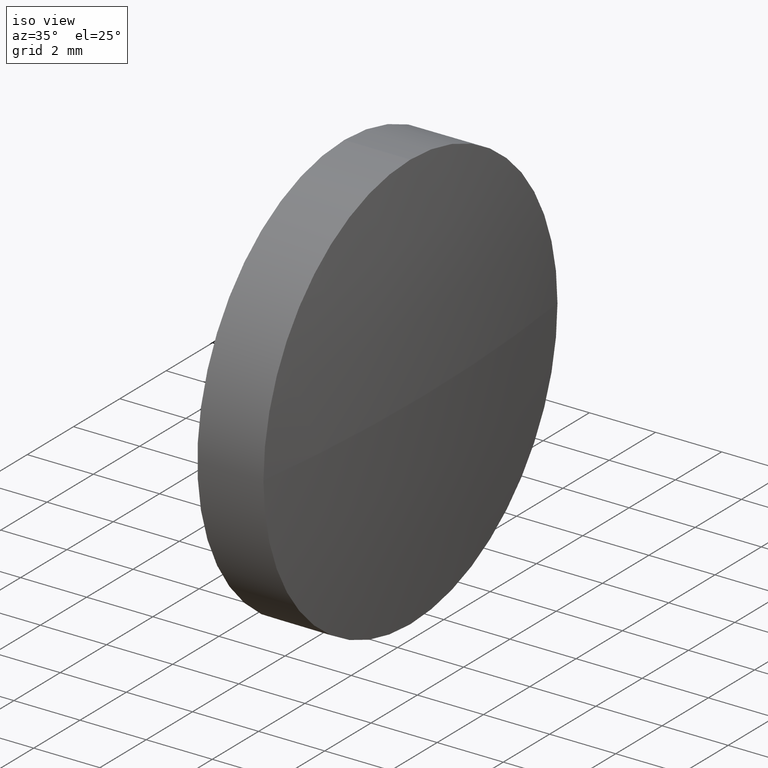
[diagram: clean part render]
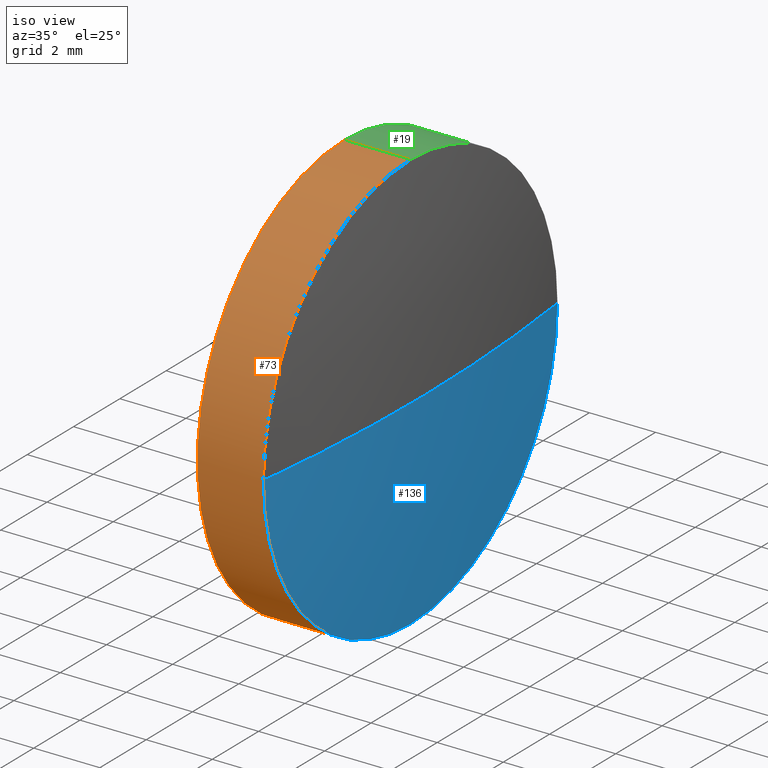
[diagram: same view with three faces highlighted in distinct colors, each labeled with its STEP entity id]
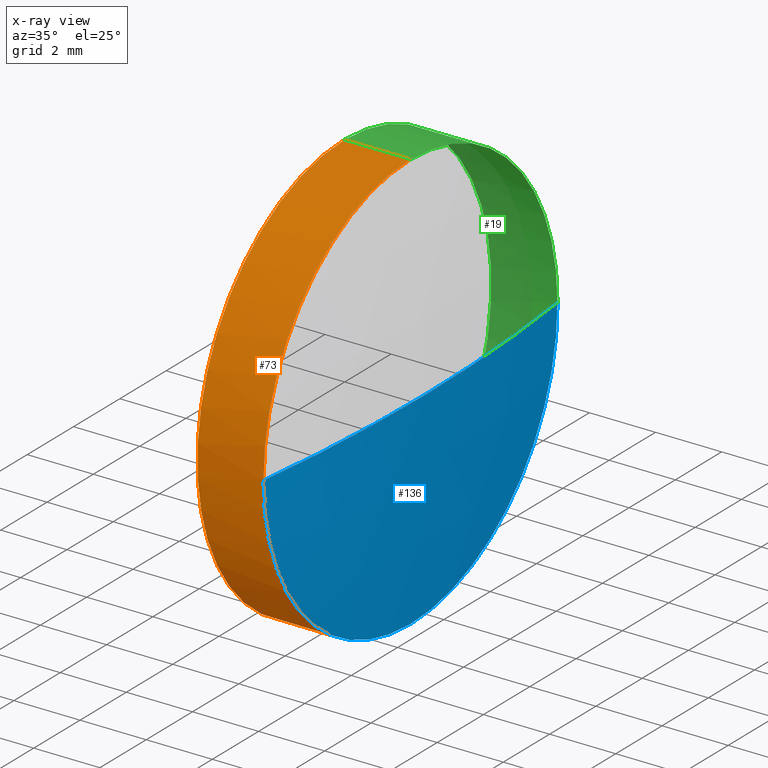
[diagram: x-ray of the same camera — body ghosted, the three highlighted faces saturated]
A machine part, iso view with three faces highlighted in distinct colors.
The next image is the same camera in x-ray (body ghosted, the three faces saturated) — at least one of them is partly hidden behind the body in this view.
Their STEP definitions:

[orange] entity #73 — the highlighted cylindrical surface (partial cylindrical patch) has radius 6.35 mm, axis along (-1, -0, -0).
#3 = EDGE_CURVE ( 'NONE', #176, #165, #163, .T. ) ;
#6 = DIRECTION ( 'NONE',  ( -1.000000000000000000, -0.0000000000000000000, -0.0000000000000000000 ) ) ;
#12 = CARTESIAN_POINT ( 'NONE',  ( 551.8125703644948300, 54.82747999081997400, 6.350000000000001400 ) ) ;
#13 = CIRCLE ( 'NONE', #121, 6.350000000000001400 ) ;
#14 = AXIS2_PLACEMENT_3D ( 'NONE', #182, #46, #99 ) ;
#16 = VERTEX_POINT ( 'NONE', #42 ) ;
#28 = LINE ( 'NONE', #139, #123 ) ;
#29 = CARTESIAN_POINT ( 'NONE',  ( 553.8125703644948300, 54.82747999081997400, 0.0000000000000000000 ) ) ;
#32 = CARTESIAN_POINT ( 'NONE',  ( 553.8125703644948300, 54.82747999081997400, 6.350000000000001400 ) ) ;
#35 = CARTESIAN_POINT ( 'NONE',  ( 551.8125703644948300, 54.82747999081997400, 0.0000000000000000000 ) ) ;
#42 = CARTESIAN_POINT ( 'NONE',  ( 553.8125703644948300, 54.82747999081997400, -6.350000000000001400 ) ) ;
#44 = ORIENTED_EDGE ( 'NONE', *, *, #3, .T. ) ;
#46 = DIRECTION ( 'NONE',  ( -1.000000000000000000, -0.0000000000000000000, -0.0000000000000000000 ) ) ;
#52 = DIRECTION ( 'NONE',  ( -1.000000000000000000, -0.0000000000000000000, -0.0000000000000000000 ) ) ;
#54 = DIRECTION ( 'NONE',  ( 0.0000000000000000000, 0.0000000000000000000, 1.000000000000000000 ) ) ;
#57 = VERTEX_POINT ( 'NONE', #112 ) ;
#60 = DIRECTION ( 'NONE',  ( 0.0000000000000000000, 0.0000000000000000000, 1.000000000000000000 ) ) ;
#61 = DIRECTION ( 'NONE',  ( -1.000000000000000000, -0.0000000000000000000, -0.0000000000000000000 ) ) ;
#68 = VERTEX_POINT ( 'NONE', #12 ) ;
#70 = VECTOR ( 'NONE', #186, 1000.000000000000000 ) ;
#73 = ADVANCED_FACE ( 'NONE', ( #119 ), #76, .T. ) ;
#76 = CYLINDRICAL_SURFACE ( 'NONE', #89, 6.350000000000001400 ) ;
#87 = ORIENTED_EDGE ( 'NONE', *, *, #146, .F. ) ;
#88 = CIRCLE ( 'NONE', #178, 6.350000000000001400 ) ;
#89 = AXIS2_PLACEMENT_3D ( 'NONE', #184, #102, #109 ) ;
#99 = DIRECTION ( 'NONE',  ( 0.0000000000000000000, 0.0000000000000000000, 1.000000000000000000 ) ) ;
#101 = ORIENTED_EDGE ( 'NONE', *, *, #132, .T. ) ;
#102 = DIRECTION ( 'NONE',  ( -1.000000000000000000, -0.0000000000000000000, -0.0000000000000000000 ) ) ;
#109 = DIRECTION ( 'NONE',  ( 0.0000000000000000000, 0.0000000000000000000, 1.000000000000000000 ) ) ;
#112 = CARTESIAN_POINT ( 'NONE',  ( 551.8125703644948300, 54.82747999081997400, -6.350000000000001400 ) ) ;
#115 = EDGE_CURVE ( 'NONE', #57, #68, #88, .T. ) ;
#117 = LINE ( 'NONE', #130, #70 ) ;
#119 = FACE_OUTER_BOUND ( 'NONE', #142, .T. ) ;
#121 = AXIS2_PLACEMENT_3D ( 'NONE', #29, #61, #60 ) ;
#123 = VECTOR ( 'NONE', #6, 1000.000000000000000 ) ;
#128 = ORIENTED_EDGE ( 'NONE', *, *, #115, .F. ) ;
#130 = CARTESIAN_POINT ( 'NONE',  ( 549.5520392186404000, 54.82747999081997400, 6.350000000000001400 ) ) ;
#131 = EDGE_CURVE ( 'NONE', #16, #176, #13, .T. ) ;
#132 = EDGE_CURVE ( 'NONE', #165, #68, #117, .T. ) ;
#139 = CARTESIAN_POINT ( 'NONE',  ( 549.5520392186404000, 54.82747999081997400, -6.350000000000001400 ) ) ;
#142 = EDGE_LOOP ( 'NONE', ( #87, #177, #44, #101, #128 ) ) ;
#146 = EDGE_CURVE ( 'NONE', #16, #57, #28, .T. ) ;
#163 = CIRCLE ( 'NONE', #14, 6.350000000000001400 ) ;
#165 = VERTEX_POINT ( 'NONE', #32 ) ;
#167 = CARTESIAN_POINT ( 'NONE',  ( 553.8125703644948300, 48.47747999082014300, 0.0000000000000000000 ) ) ;
#176 = VERTEX_POINT ( 'NONE', #167 ) ;
#177 = ORIENTED_EDGE ( 'NONE', *, *, #131, .T. ) ;
#178 = AXIS2_PLACEMENT_3D ( 'NONE', #35, #52, #54 ) ;
#182 = CARTESIAN_POINT ( 'NONE',  ( 553.8125703644948300, 54.82747999081997400, 0.0000000000000000000 ) ) ;
#184 = CARTESIAN_POINT ( 'NONE',  ( 549.5520392186404000, 54.82747999081997400, 0.0000000000000000000 ) ) ;
#186 = DIRECTION ( 'NONE',  ( -1.000000000000000000, -0.0000000000000000000, -0.0000000000000000000 ) ) ;

[blue] entity #136 — the highlighted spherical surface has radius 50.6031 mm.
#1 = ORIENTED_EDGE ( 'NONE', *, *, #71, .F. ) ;
#2 = CIRCLE ( 'NONE', #34, 50.60312499999986400 ) ;
#5 = FACE_OUTER_BOUND ( 'NONE', #51, .T. ) ;
#13 = CIRCLE ( 'NONE', #121, 6.350000000000001400 ) ;
#16 = VERTEX_POINT ( 'NONE', #42 ) ;
#29 = CARTESIAN_POINT ( 'NONE',  ( 553.8125703644948300, 54.82747999081997400, 0.0000000000000000000 ) ) ;
#34 = AXIS2_PLACEMENT_3D ( 'NONE', #175, #161, #84 ) ;
#39 = SPHERICAL_SURFACE ( 'NONE', #147, 50.60312499999987100 ) ;
#42 = CARTESIAN_POINT ( 'NONE',  ( 553.8125703644948300, 54.82747999081997400, -6.350000000000001400 ) ) ;
#48 = DIRECTION ( 'NONE',  ( 0.0000000000000000000, 0.0000000000000000000, 1.000000000000000000 ) ) ;
#51 = EDGE_LOOP ( 'NONE', ( #114, #168, #122, #1 ) ) ;
#60 = DIRECTION ( 'NONE',  ( 0.0000000000000000000, 0.0000000000000000000, 1.000000000000000000 ) ) ;
#61 = DIRECTION ( 'NONE',  ( -1.000000000000000000, -0.0000000000000000000, -0.0000000000000000000 ) ) ;
#65 = DIRECTION ( 'NONE',  ( 0.0000000000000000000, -1.224646799147353200E-016, 1.000000000000000000 ) ) ;
#67 = CARTESIAN_POINT ( 'NONE',  ( 554.2125703644948100, 54.82747999082007300, 0.0000000000000000000 ) ) ;
#69 = AXIS2_PLACEMENT_3D ( 'NONE', #170, #80, #48 ) ;
#71 = EDGE_CURVE ( 'NONE', #172, #16, #162, .T. ) ;
#74 = EDGE_CURVE ( 'NONE', #79, #176, #2, .T. ) ;
#78 = DIRECTION ( 'NONE',  ( 0.0000000000000000000, -1.000000000000000000, -1.224646799147353200E-016 ) ) ;
#79 = VERTEX_POINT ( 'NONE', #67 ) ;
#80 = DIRECTION ( 'NONE',  ( -1.000000000000000000, -0.0000000000000000000, -0.0000000000000000000 ) ) ;
#81 = DIRECTION ( 'NONE',  ( 0.0000000000000000000, -1.000000000000000000, 0.0000000000000000000 ) ) ;
#84 = DIRECTION ( 'NONE',  ( -1.000000000000000000, 0.0000000000000000000, 0.0000000000000000000 ) ) ;
#85 = CIRCLE ( 'NONE', #145, 50.60312499999987100 ) ;
#114 = ORIENTED_EDGE ( 'NONE', *, *, #173, .F. ) ;
#121 = AXIS2_PLACEMENT_3D ( 'NONE', #29, #61, #60 ) ;
#122 = ORIENTED_EDGE ( 'NONE', *, *, #131, .F. ) ;
#131 = EDGE_CURVE ( 'NONE', #16, #176, #13, .T. ) ;
#136 = ADVANCED_FACE ( 'NONE', ( #5 ), #39, .T. ) ;
#145 = AXIS2_PLACEMENT_3D ( 'NONE', #154, #65, #78 ) ;
#147 = AXIS2_PLACEMENT_3D ( 'NONE', #174, #158, #81 ) ;
#154 = CARTESIAN_POINT ( 'NONE',  ( 503.6094453644949500, 54.82747999082007300, 0.0000000000000000000 ) ) ;
#158 = DIRECTION ( 'NONE',  ( 0.0000000000000000000, 0.0000000000000000000, 1.000000000000000000 ) ) ;
#161 = DIRECTION ( 'NONE',  ( 0.0000000000000000000, 0.0000000000000000000, -1.000000000000000000 ) ) ;
#162 = CIRCLE ( 'NONE', #69, 6.350000000000001400 ) ;
#167 = CARTESIAN_POINT ( 'NONE',  ( 553.8125703644948300, 48.47747999082014300, 0.0000000000000000000 ) ) ;
#168 = ORIENTED_EDGE ( 'NONE', *, *, #74, .T. ) ;
#170 = CARTESIAN_POINT ( 'NONE',  ( 553.8125703644948300, 54.82747999081997400, 0.0000000000000000000 ) ) ;
#172 = VERTEX_POINT ( 'NONE', #183 ) ;
#173 = EDGE_CURVE ( 'NONE', #79, #172, #85, .T. ) ;
#174 = CARTESIAN_POINT ( 'NONE',  ( 503.6094453644949500, 54.82747999082007300, 0.0000000000000000000 ) ) ;
#175 = CARTESIAN_POINT ( 'NONE',  ( 503.6094453644949500, 54.82747999082007300, 0.0000000000000000000 ) ) ;
#176 = VERTEX_POINT ( 'NONE', #167 ) ;
#183 = CARTESIAN_POINT ( 'NONE',  ( 553.8125703644948300, 61.17747999081989700, 7.776507174585485100E-016 ) ) ;

[green] entity #19 — the highlighted cylindrical surface (partial cylindrical patch) has radius 6.35 mm, axis along (-1, -0, -0).
#6 = DIRECTION ( 'NONE',  ( -1.000000000000000000, -0.0000000000000000000, -0.0000000000000000000 ) ) ;
#10 = FACE_OUTER_BOUND ( 'NONE', #56, .T. ) ;
#12 = CARTESIAN_POINT ( 'NONE',  ( 551.8125703644948300, 54.82747999081997400, 6.350000000000001400 ) ) ;
#16 = VERTEX_POINT ( 'NONE', #42 ) ;
#19 = ADVANCED_FACE ( 'NONE', ( #10 ), #120, .T. ) ;
#21 = AXIS2_PLACEMENT_3D ( 'NONE', #97, #155, #63 ) ;
#23 = ORIENTED_EDGE ( 'NONE', *, *, #181, .T. ) ;
#25 = AXIS2_PLACEMENT_3D ( 'NONE', #152, #116, #93 ) ;
#28 = LINE ( 'NONE', #139, #123 ) ;
#31 = ORIENTED_EDGE ( 'NONE', *, *, #146, .T. ) ;
#32 = CARTESIAN_POINT ( 'NONE',  ( 553.8125703644948300, 54.82747999081997400, 6.350000000000001400 ) ) ;
#42 = CARTESIAN_POINT ( 'NONE',  ( 553.8125703644948300, 54.82747999081997400, -6.350000000000001400 ) ) ;
#45 = EDGE_CURVE ( 'NONE', #68, #57, #157, .T. ) ;
#48 = DIRECTION ( 'NONE',  ( 0.0000000000000000000, 0.0000000000000000000, 1.000000000000000000 ) ) ;
#55 = ORIENTED_EDGE ( 'NONE', *, *, #45, .F. ) ;
#56 = EDGE_LOOP ( 'NONE', ( #135, #31, #55, #137, #23 ) ) ;
#57 = VERTEX_POINT ( 'NONE', #112 ) ;
#63 = DIRECTION ( 'NONE',  ( 0.0000000000000000000, 0.0000000000000000000, 1.000000000000000000 ) ) ;
#64 = DIRECTION ( 'NONE',  ( 0.0000000000000000000, 0.0000000000000000000, 1.000000000000000000 ) ) ;
#68 = VERTEX_POINT ( 'NONE', #12 ) ;
#69 = AXIS2_PLACEMENT_3D ( 'NONE', #170, #80, #48 ) ;
#70 = VECTOR ( 'NONE', #186, 1000.000000000000000 ) ;
#71 = EDGE_CURVE ( 'NONE', #172, #16, #162, .T. ) ;
#75 = CIRCLE ( 'NONE', #149, 6.350000000000001400 ) ;
#80 = DIRECTION ( 'NONE',  ( -1.000000000000000000, -0.0000000000000000000, -0.0000000000000000000 ) ) ;
#93 = DIRECTION ( 'NONE',  ( 0.0000000000000000000, 0.0000000000000000000, 1.000000000000000000 ) ) ;
#97 = CARTESIAN_POINT ( 'NONE',  ( 549.5520392186404000, 54.82747999081997400, 0.0000000000000000000 ) ) ;
#98 = DIRECTION ( 'NONE',  ( -1.000000000000000000, -0.0000000000000000000, -0.0000000000000000000 ) ) ;
#112 = CARTESIAN_POINT ( 'NONE',  ( 551.8125703644948300, 54.82747999081997400, -6.350000000000001400 ) ) ;
#116 = DIRECTION ( 'NONE',  ( -1.000000000000000000, -0.0000000000000000000, -0.0000000000000000000 ) ) ;
#117 = LINE ( 'NONE', #130, #70 ) ;
#120 = CYLINDRICAL_SURFACE ( 'NONE', #21, 6.350000000000001400 ) ;
#123 = VECTOR ( 'NONE', #6, 1000.000000000000000 ) ;
#130 = CARTESIAN_POINT ( 'NONE',  ( 549.5520392186404000, 54.82747999081997400, 6.350000000000001400 ) ) ;
#132 = EDGE_CURVE ( 'NONE', #165, #68, #117, .T. ) ;
#135 = ORIENTED_EDGE ( 'NONE', *, *, #71, .T. ) ;
#137 = ORIENTED_EDGE ( 'NONE', *, *, #132, .F. ) ;
#139 = CARTESIAN_POINT ( 'NONE',  ( 549.5520392186404000, 54.82747999081997400, -6.350000000000001400 ) ) ;
#141 = CARTESIAN_POINT ( 'NONE',  ( 553.8125703644948300, 54.82747999081997400, 0.0000000000000000000 ) ) ;
#146 = EDGE_CURVE ( 'NONE', #16, #57, #28, .T. ) ;
#149 = AXIS2_PLACEMENT_3D ( 'NONE', #141, #98, #64 ) ;
#152 = CARTESIAN_POINT ( 'NONE',  ( 551.8125703644948300, 54.82747999081997400, 0.0000000000000000000 ) ) ;
#155 = DIRECTION ( 'NONE',  ( -1.000000000000000000, -0.0000000000000000000, -0.0000000000000000000 ) ) ;
#157 = CIRCLE ( 'NONE', #25, 6.350000000000001400 ) ;
#162 = CIRCLE ( 'NONE', #69, 6.350000000000001400 ) ;
#165 = VERTEX_POINT ( 'NONE', #32 ) ;
#170 = CARTESIAN_POINT ( 'NONE',  ( 553.8125703644948300, 54.82747999081997400, 0.0000000000000000000 ) ) ;
#172 = VERTEX_POINT ( 'NONE', #183 ) ;
#181 = EDGE_CURVE ( 'NONE', #165, #172, #75, .T. ) ;
#183 = CARTESIAN_POINT ( 'NONE',  ( 553.8125703644948300, 61.17747999081989700, 7.776507174585485100E-016 ) ) ;
#186 = DIRECTION ( 'NONE',  ( -1.000000000000000000, -0.0000000000000000000, -0.0000000000000000000 ) ) ;